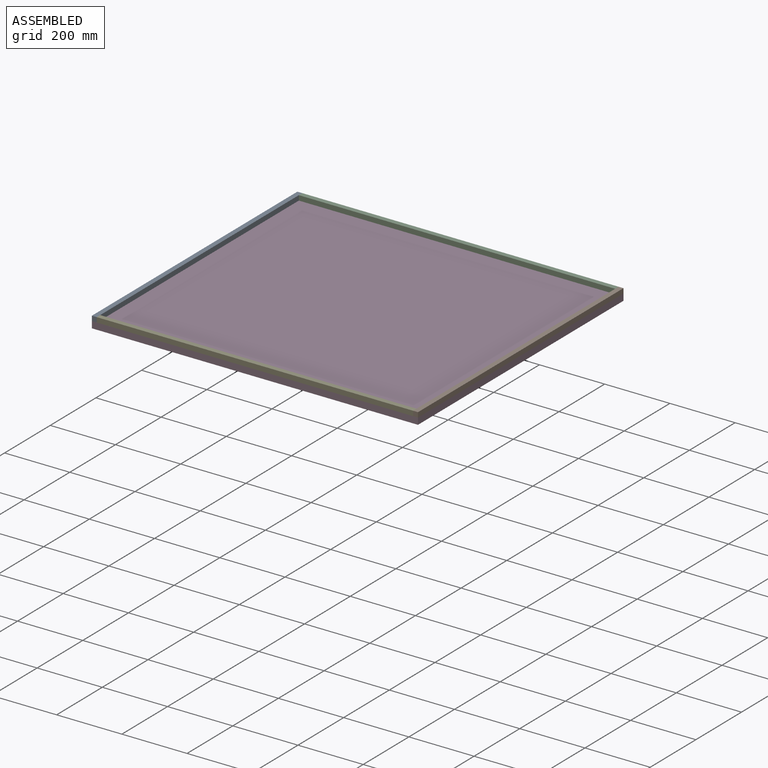
[diagram: assembled view]
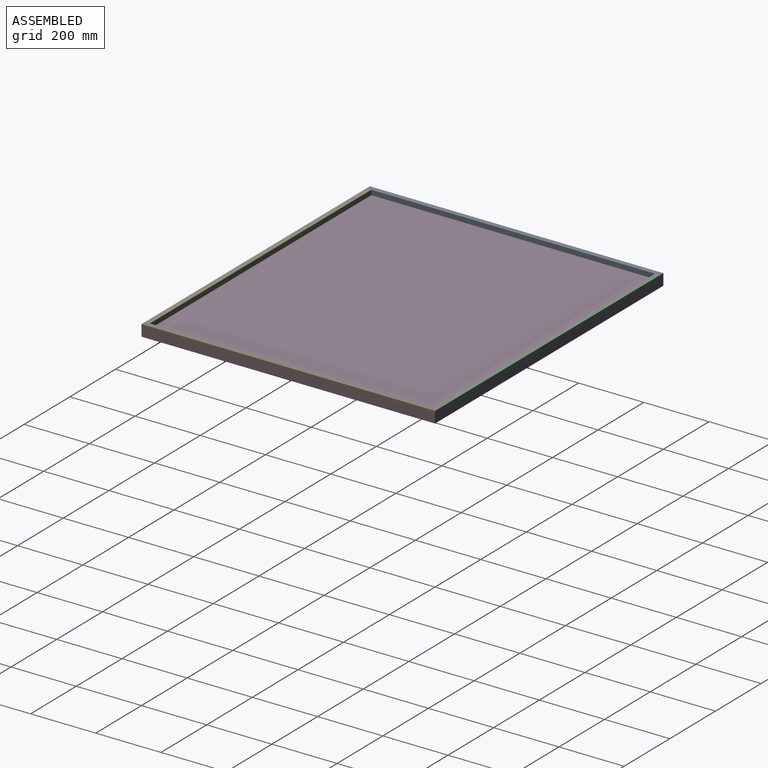
[diagram: assembled view, second angle]
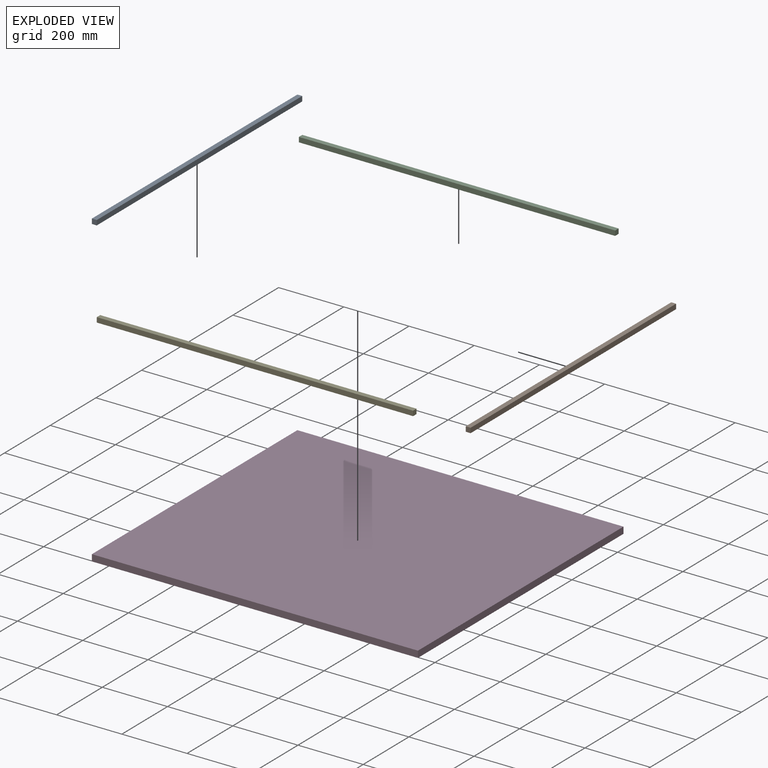
[diagram: exploded view]
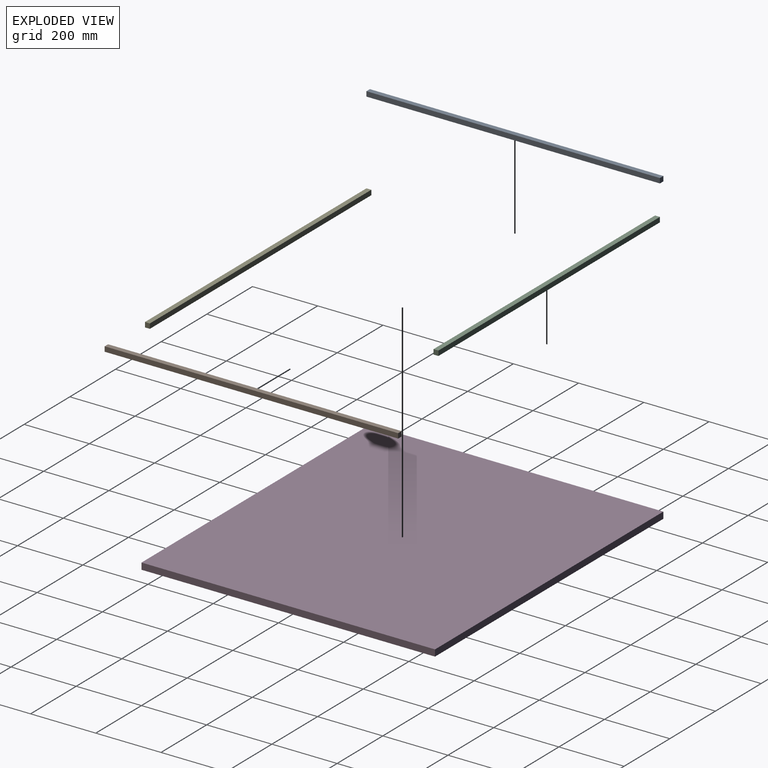
[diagram: exploded view, second angle]
ASSEMBLY  parts=5 mates=4
PART A: 6 faces, bbox 15x900x15 mm
  f0: plane 15x15mm, normal (0,-1,0), area 225mm2, adj f1,f3,f4,f5
  f1: plane 900x15mm, normal (1,0,0), area 13500mm2, adj f0,f2,f4,f5
  f2: plane 15x15mm, normal (0,1,0), area 225mm2, adj f1,f3,f4,f5
  f3: plane 900x15mm, normal (-1,0,0), area 13500mm2, adj f0,f2,f4,f5
  f4: plane 900x15mm, normal (0,0,1), area 13500mm2, adj f0,f1,f2,f3
  f5: plane 900x15mm, normal (0,0,-1), area 13500mm2, adj f0,f1,f2,f3
PART B: same geometry as A
PART C: 6 faces, bbox 15x970x15 mm
  f0: plane 15x15mm, normal (0,-1,0), area 225mm2, adj f1,f3,f4,f5
  f1: plane 970x15mm, normal (1,0,0), area 14550mm2, adj f0,f2,f4,f5
  f2: plane 15x15mm, normal (0,1,0), area 225mm2, adj f1,f3,f4,f5
  f3: plane 970x15mm, normal (-1,0,0), area 14550mm2, adj f0,f2,f4,f5
  f4: plane 970x15mm, normal (0,0,1), area 14550mm2, adj f0,f1,f2,f3
  f5: plane 970x15mm, normal (0,0,-1), area 14550mm2, adj f0,f1,f2,f3
PART D: 6 faces, bbox 1000x900x20 mm
  f0: plane 1000x20mm, normal (0,-1,0), area 20000mm2, adj f1,f3,f4,f5
  f1: plane 900x20mm, normal (1,0,0), area 18000mm2, adj f0,f2,f4,f5
  f2: plane 1000x20mm, normal (0,1,0), area 20000mm2, adj f1,f3,f4,f5
  f3: plane 900x20mm, normal (-1,0,0), area 18000mm2, adj f0,f2,f4,f5
  f4: plane 1000x900mm, normal (0,0,1), area 900000mm2, adj f0,f1,f2,f3
  f5: plane 1000x900mm, normal (0,0,-1), area 900000mm2, adj f0,f1,f2,f3
PART E: same geometry as C
PLACE A t=(-418.16,12.25,98.43)mm
PLACE B t=(566.84,12.25,98.43)mm
PLACE C rot(axis=(0,0,-1),90deg) t=(74.34,454.75,98.43)mm
PLACE D t=(74.34,12.25,78.43)mm
PLACE E rot(axis=(0,0,-1),90deg) t=(74.34,-430.25,98.43)mm
MATE fastened D.f4 <-> B.f5  axis (0,0,1) through (574.34,12.25,98.43)mm
MATE fastened D.f4 <-> E.f5  axis (0,0,1) through (74.34,-437.75,98.43)mm
MATE fastened D.f4 <-> C.f5  axis (0,0,1) through (74.34,462.25,98.43)mm
MATE fastened A.f5 <-> D.f4  axis (0,0,-1) through (-425.66,12.25,98.43)mm
